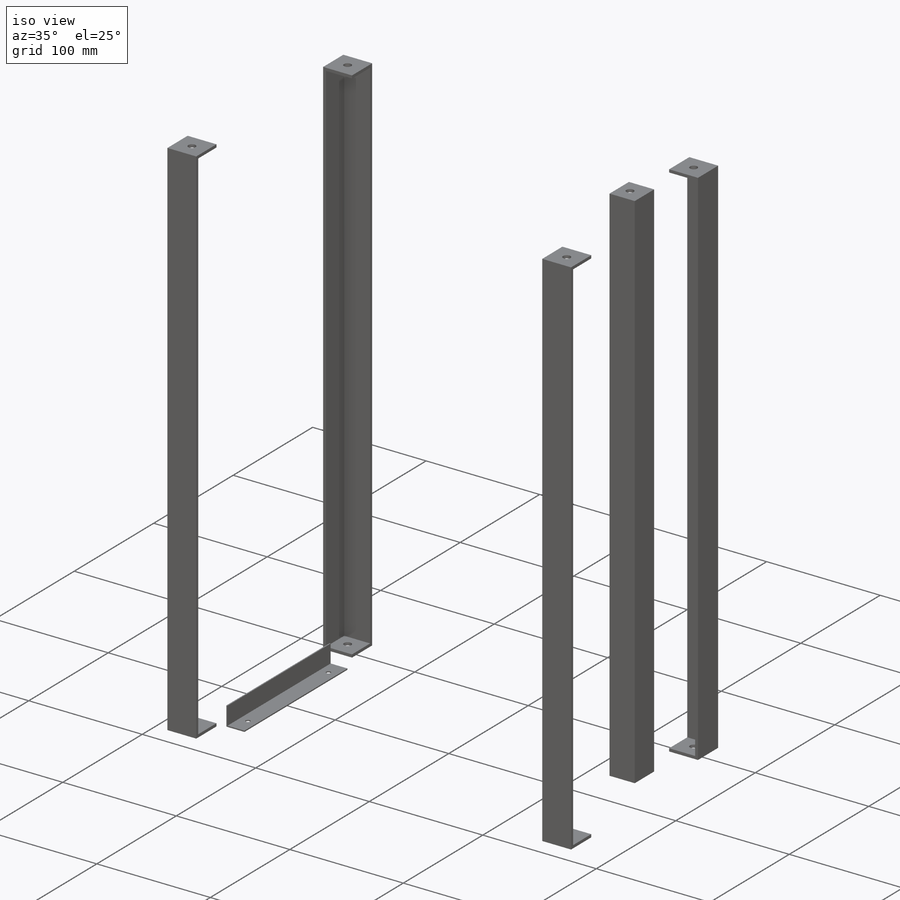
[diagram: iso view]
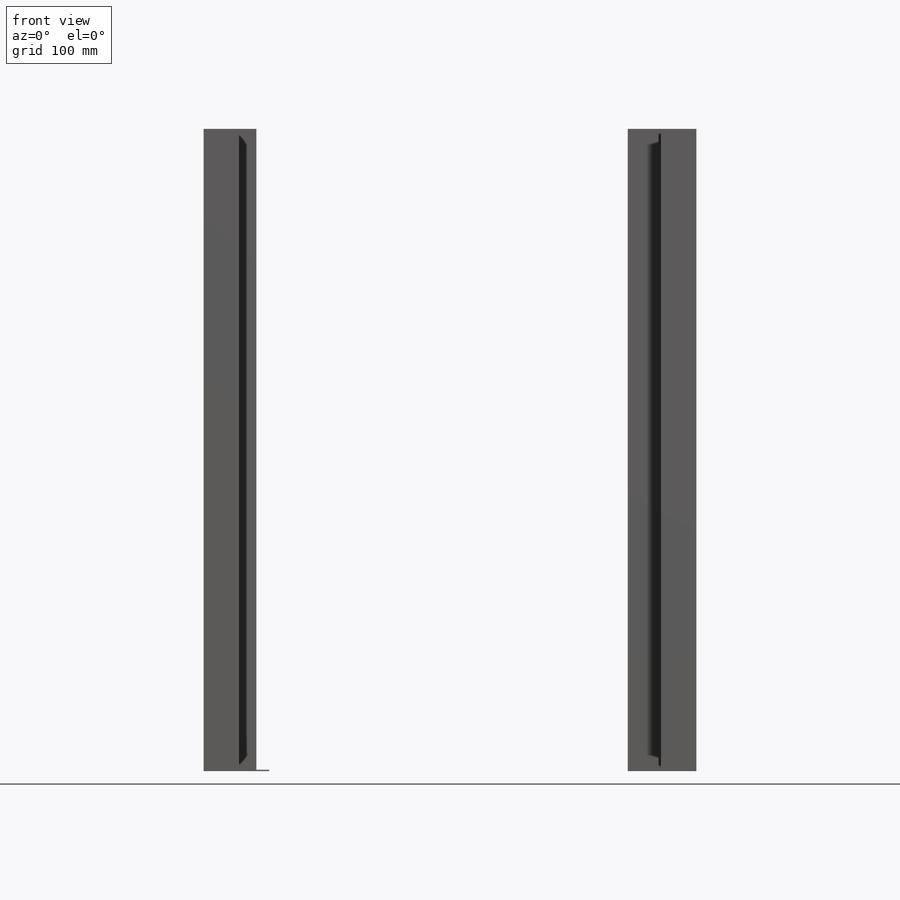
[diagram: front view]
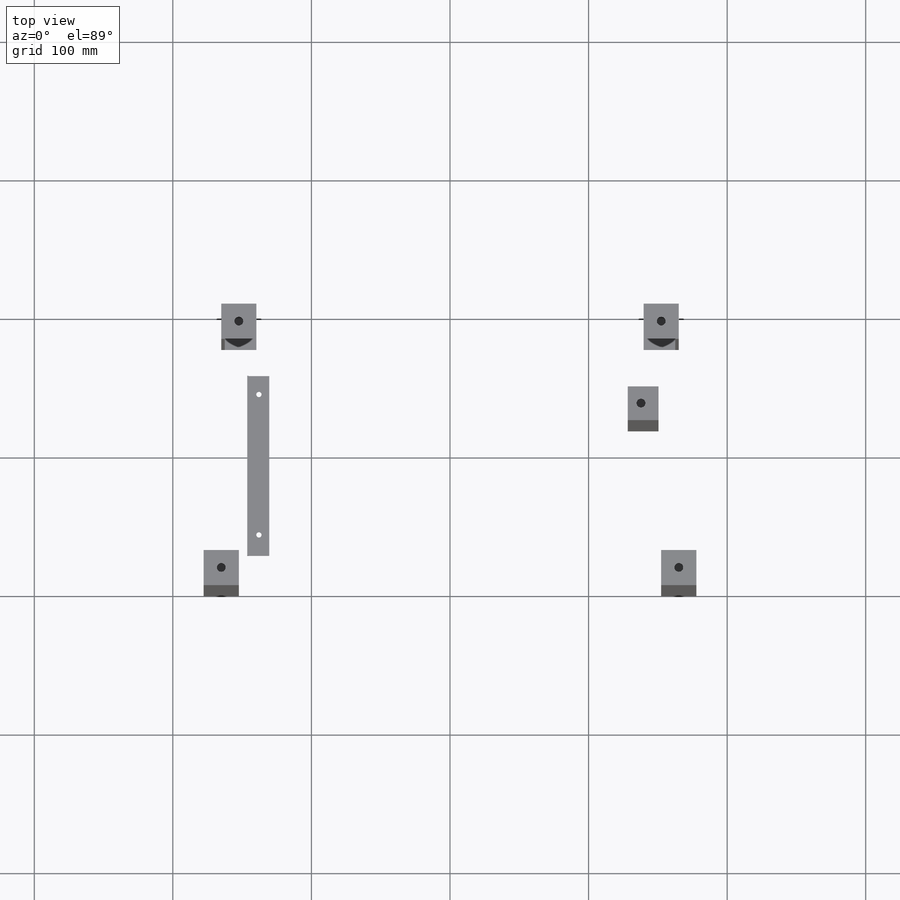
[diagram: top view]
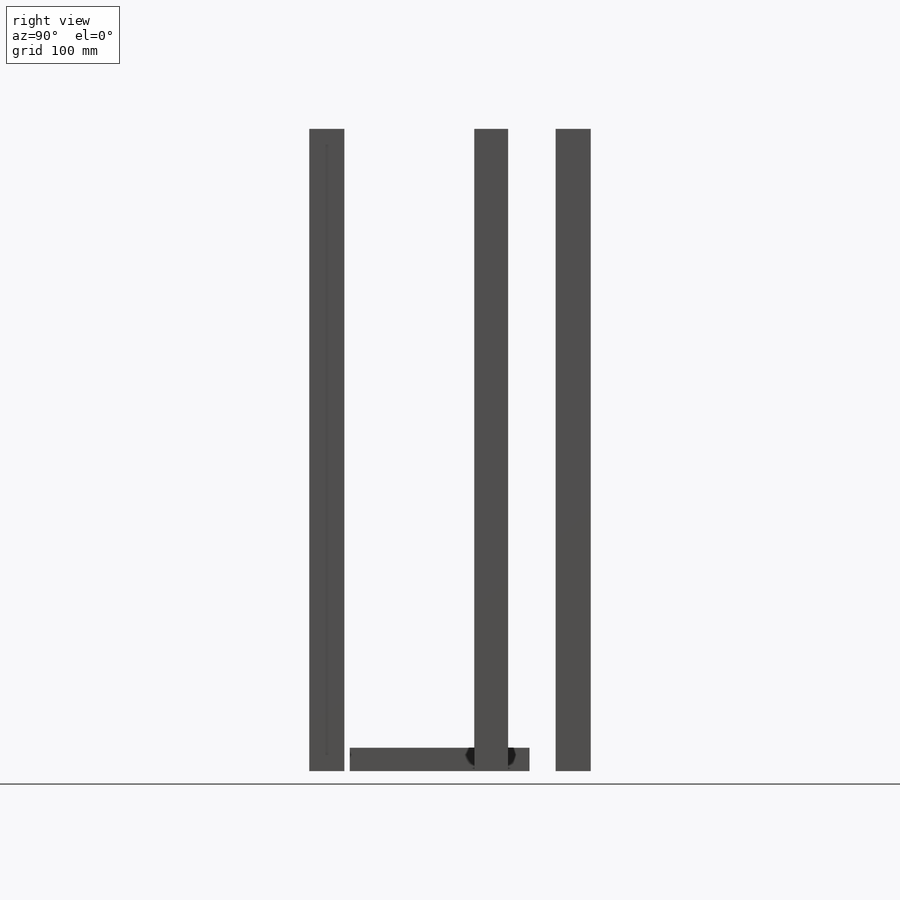
[diagram: right view]
SOLIDWORKS PART (.sldprt)
format: sldprt  version: not decoded by parser v0  size: 6,373,376 bytes
history: native  units: mm
features: sketch x292, extrude x75, cut_extrude x72, sheet_metal_op x50, mirror x46, fillet x34, plane x13, move_body x7, boolean_combine x4, delete_body x3, chamfer x2, material x1, surface_op x1 + 101 further entries (+12 scaffold rows collapsed; 41 parser-record rows omitted)
feature tree (754):
  scaffold x12  (default folders/planes/origin — collapsed)
  material  "Material <not specified>"
  sketch  "Sketch1"  dims[D1=203.2mm D2=406.4mm]
  extrude  "Boss-Extrude1"  Depth=2.54mm
  plane  "Plane1"  Offset=463.55mm
  fillet  "Fillet1"  Radius=25.4mm
  sketch  "Sketch2"  dims[D1=0.0mm]
  extrude  "Boss-Extrude2"  Depth=2.54mm
  sketch  "Sketch4"  dims[D1=12.7mm D2=12.7mm D3=76.2mm D4=1.651mm]
  sketch  "Sketch3"  dims[c1.D4=1.524mm c1.D2=76.2mm c1.D3=25.4mm c2.D2=152.4mm c2.D5=50.8mm c2.D6=76.2mm c2.D7=76.2mm c2.D8=25.4mm c2.D1=0.0mm]
  surface_op  "Surface-Extrude1"
  "Thicken2"
  sketch  "Sketch11"  dims[D1=254.0mm]
  sketch  "Sketch12"  dims[D1=0.0mm]
  sketch  "Sketch15"  dims[c1.D1=254.0mm c1.D2=1.524mm c2.D1=254.0mm c2.D2=0.762mm c2.D3=0.762mm]
  extrude  "Boss-Extrude10"  [1 undecoded]
  sketch  "Sketch16"  dims[D1=0.0mm]
  extrude  "Boss-Extrude11"  [1 undecoded]
  sketch  "Sketch18"  dims[D3=25.4mm D1=114.3mm D2=99.06mm D4=0.762mm]
  extrude  "Boss-Extrude13"  [1 undecoded]
  sketch  "Sketch21"  dims[c1.D1=12.7mm c1.D2=76.2mm c1.D3=6.35mm c1.D4=6.35mm c2.D2=120.65mm c2.D3=95.25mm]
  extrude  "Boss-Extrude15"  [1 undecoded]
  sketch  "Sketch22"  dims[D1=12.7mm D2=177.8mm D3=3.175mm]
  cut_extrude  "Cut-Extrude3"  Depth=12.7mm
  fillet  "Fillet6"  [1 undecoded]
  fillet  "Fillet7"  [1 undecoded]
  fillet  "Fillet8"  [1 undecoded]
  fillet  "Fillet9"  [1 undecoded]
  sketch  "Sketch24"  dims[D1=0.0mm]
  extrude  "Boss-Extrude17"  Depth=6.35mm
  plane  "Plane2"  Offset=25.4mm
  sketch  "Sketch25"  dims[D2=88.9mm D1=3.175mm]
  extrude  "Boss-Extrude18"  Depth=2.54mm
  sketch  "Sketch26"  dims[c1.D1=88.9mm c2.D1=1.524mm]
  sketch  "Sketch27"  dims[D1=254.0mm]
  extrude  "Boss-Extrude19"  [1 undecoded]
  plane  "Plane3"  Offset=50.8mm
  sketch  "Sketch28"  dims[D1=6.35mm D2=19.05mm]
  extrude  "Boss-Extrude20"  Depth=25.4mm
  sketch  "Sketch29"  dims[D1=3.175mm]
  extrude  "Boss-Extrude21"  Depth=152.4mm
  move_body  "Body-Move/Copy3"
  sketch  "Sketch30"  dims[D1=88.9mm D2=139.7mm D3=25.4mm]
  cut_extrude  "Cut-Extrude4"  Depth=17.78mm
  fillet  "Fillet13"  Radius=9.525mm
  sketch  "Sketch34"  dims[D1=~13.49375mm]
  sketch  "Sketch35"
  cut_extrude  "Cut-Extrude6"  Depth=25.146mm
  sketch  "Sketch36"  dims[D1=6.35mm]
  sketch  "Sketch38"  dims[c1.D2=38.1mm c1.D1=0.0mm c2.D1=0.7366mm c2.D2=0.5 c2.D3=0.0mm c2.D6=500.0mm]
  sheet_metal_op  "Base-Flange1"
  sheet_metal_op  "BaseBend2"
  plane  "Plane4"
  sketch  "Sketch44"
  sketch  "Sketch47"  dims[c1.D1=0.7366mm c1.D4=90.0deg c1.D5=3.0 c1.D8=0.4445mm c1.D9=0.4445mm c2.D1=0.7366mm c2.D2=500.0mm c2.D3=0.0mm c2.D6=10.0mm c2.D7=118.11mm]
  sketch  "Sketch48"  dims[D1=38.1mm Base-Flange2=0.0]
  sheet_metal_op  "BaseBend3"
  sheet_metal_op  "BaseBend4"
  sketch  "3DSketch1"
  plane  "Plane9"
  sketch  "Sketch51"  dims[D1=25.4mm D2=25.4mm D4=25.4mm D5=25.4mm D3=2.54mm D6=1.524mm]
  extrude  "Boss-Extrude23"  Depth=254mm
  mirror  "Mirror4"
  sketch  "Sketch52"  dims[D1=25.4mm D2=25.4mm D3=2.54mm]
  extrude  "Boss-Extrude24"  [1 undecoded]
  sketch  "Sketch53"  dims[c1.D1=25.4mm c1.D2=~15.619933mm c2.D2=90.0deg c3.D2=25.4mm c3.D3=2.54mm]
  extrude  "Boss-Extrude25"  [1 undecoded]
  sketch  "Sketch54"  dims[D1=25.4mm D2=25.4mm D3=2.54mm]
  extrude  "Boss-Extrude26"  [1 undecoded]
  sketch  "Sketch55"
  sketch  "Sketch56"
  cut_extrude  "Cut-Extrude9"  [1 undecoded]
  sketch  "Sketch61"
  sketch  "EdgeBend2"  dims[c1.D1=0.7366mm c1.D4=90.0deg c1.D5=3.0 c1.D8=0.4445mm c1.D9=0.4445mm c2.D1=0.7366mm c2.D2=500.0mm c2.D3=0.0mm c2.D6=10.0mm c2.D7=118.11mm]
  sketch  "Sketch62"
  cut_extrude  "Cut-Extrude10"  [1 undecoded]
  sketch  "Sketch63"
  sketch  "Sketch64"
  sketch  "Sketch65"  dims[D1=0.0mm Base-Flange3=0.0]
  sheet_metal_op  "BaseBend12"
  sheet_metal_op  "BaseBend13"
  sheet_metal_op  "BaseBend14"
  sketch  "Sketch68"
  cut_extrude  "Cut-Extrude12"  [1 undecoded]
  sketch  "Sketch69"  dims[Base-Flange4=1.3e-05]
  sheet_metal_op  "BaseBend8"
  sketch  "Sketch74"  dims[D1=25.4mm Base-Flange5=~0.265626]
  sheet_metal_op  "BaseBend9"
  sheet_metal_op  "BaseBend10"
  sketch  "Sketch77"  dims[D1=254.0mm D2=88.9mm]
  sketch  "Sketch82"
  cut_extrude  "Cut-Extrude15"  Depth=5.588mm
  move_body  "Body-Move/Copy4"
  sketch  "Sketch83"  dims[D1=0.0mm]
  extrude  "Boss-Extrude27"  Depth=5.588mm
  plane  "Plane5"
  mirror  "Mirror1"
  sketch  "DerivedBend1"  dims[D1=0.7366mm D2=500.0mm D3=0.0mm D4=~17.432148deg D5=1.0]
  sketch  "DerivedBend2"  dims[D1=253.111mm D2=500.0mm D3=0.0mm D4=~5.706513deg D5=2.0]
  sketch  "Sketch86"
  extrude  "Boss-Extrude28"  Depth=2.54mm
  sketch  "Sketch87"
  extrude  "Boss-Extrude29"  Depth=2.54mm
  sketch  "Sketch88"
  extrude  "Boss-Extrude30"  Depth=2.54mm
  sketch  "Sketch89"
  extrude  "Boss-Extrude31"  Depth=2.54mm
  sketch  "Sketch90"
  extrude  "Boss-Extrude32"  Depth=2.54mm
  sketch  "Sketch91"  dims[D1=6.35mm]
  cut_extrude  "Cut-Extrude16"  Depth=30.48mm
  sketch  "Sketch92"  dims[D1=6.35mm]
  sketch  "Sketch94"  dims[D3=25.4mm D1=203.2mm D2=44.45mm]
  cut_extrude  "Cut-Extrude19"  Depth=30.48mm
  sketch  "Sketch95"  dims[D1=0.0mm]
  extrude  "Boss-Extrude33"  Depth=2.54mm
  sketch  "Sketch96"  dims[D1=0.0mm D2=0.0mm]
  extrude  "Boss-Extrude34"  Depth=2.54mm
  sketch  "Sketch97"  dims[D1=0.0mm]
  extrude  "Boss-Extrude35"  Depth=2.54mm
  sketch  "Sketch98"  dims[D1=0.0mm]
  extrude  "Boss-Extrude36"  Depth=2.54mm
  sketch  "Sketch99"  dims[D1=0.0mm]
  extrude  "Boss-Extrude37"  Depth=2.54mm
  plane  "Plane6"
  sketch  "Sketch101"  dims[D1=25.4mm D2=25.4mm D4=25.4mm D5=25.4mm D3=2.54mm D6=1.524mm]
  extrude  "Boss-Extrude38"  Depth=139.7mm
  mirror  "Mirror2"
  sketch  "Sketch102"  dims[D1=6.35mm D2=25.4mm D3=25.4mm]
  delete_body  "Body-Delete1"
  sketch  "Sketch104"  dims[D1=6.35mm D2=12.7mm D3=12.7mm]
  cut_extrude  "Cut-Extrude22"  Depth=15.24mm
  move_body  "Body-Move/Copy5"
  move_body  "Body-Move/Copy6"
  sketch  "Sketch106"  dims[D1=6.35mm D2=19.05mm D3=19.05mm]
  sketch  "Sketch107"  dims[D1=6.35mm D3=6.35mm D5=6.35mm D2=12.7mm D4=12.7mm]
  sketch  "Sketch108"  dims[D1=88.9mm]
  sketch  "Sketch109"  dims[D1=6.35mm D2=12.7mm]
  sketch  "Sketch110"
  sketch  "Sketch111"  dims[D1=6.35mm D2=25.4mm D3=25.4mm]
  sketch  "Sketch112"  dims[c1.D3=6.35mm c1.D2=25.4mm c2.D3=15.875mm c2.D4=25.4mm c2.D1=1.7145mm c3.D4=~0.79375mm]
  extrude  "Boss-Extrude40"  Depth=2.54mm
  sketch  "Sketch123"
  extrude  "Boss-Extrude46"  Depth=3.175mm
  sketch  "Sketch124"  dims[D1=11.43mm D2=11.43mm D3=13.97mm D4=6.35mm]
  cut_extrude  "Cut-Extrude33"  Depth=8.255mm
  sketch  "Sketch126"
  sketch  "Sketch127"
  sketch  "Sketch128"  dims[D1=6.35mm D2=88.9mm D3=25.4mm]
  boolean_combine  "Combine1"
  sketch  "Sketch129"  dims[D1=1.524mm D2=1.524mm]
  cut_extrude  "Cut-Extrude35"  Depth=7.62mm
  fillet  "Fillet18"  Radius=2.54mm
  sketch  "Sketch131"  dims[c1.D1=2.54mm c1.D2=254.0mm c2.D1=2.54mm c2.D2=254.0mm]
  extrude  "Boss-Extrude47"  Depth=25.4mm
  sketch  "Sketch132"  dims[D1=1.524mm D2=1.524mm]
  cut_extrude  "Cut-Extrude36"  Depth=25.4mm
  fillet  "Fillet19"  Radius=2.54mm
  mirror  "Mirror5"
  boolean_combine  "Combine2"
  boolean_combine  "Combine3"
  sketch  "Sketch133"  dims[D1=1.524mm D2=1.524mm]
  cut_extrude  "Cut-Extrude37"  Depth=25.4mm
  fillet  "Fillet20"  Radius=2.54mm
  fillet  "Fillet21"  Radius=2.54mm
  sketch  "Sketch134"  dims[D1=127.0mm]
  extrude  "Boss-Extrude48"  [1 undecoded]
  sketch  "Sketch135"
  cut_extrude  "Cut-Extrude38"  Depth=25.4mm
  fillet  "Fillet22"  Radius=2.54mm
  sketch  "Sketch136"  dims[D1=6.35mm D2=419.1mm]
  cut_extrude  "Cut-Extrude39"  Depth=25.4mm
  plane  "Plane10"  Offset=387.35mm
  sketch  "Sketch137"  dims[c1.D1=25.4mm c1.D2=25.4mm c1.D3=1.016mm c2.D1=1.016mm]
  extrude  "Boss-Extrude49"  [1 undecoded]
  sketch  "Sketch139"  dims[c1.D1=38.1mm c1.D2=25.4mm c2.D1=25.4mm c2.D2=25.4mm c3.D1=25.4mm c3.D3=2.54mm c3.D2=2.54mm]
  extrude  "Boss-Extrude50"  [1 undecoded]
  sketch  "Sketch141"
  extrude  "Boss-Extrude52"  Depth=2.54mm
  sketch  "Sketch142"
  extrude  "Boss-Extrude53"  Depth=2.54mm
  sketch  "Sketch140"
  extrude  "Boss-Extrude51"  Depth=2.54mm
  sketch  "Sketch145"  dims[D1=0.0mm]
  cut_extrude  "Cut-Extrude40"  Depth=19.05mm
  sketch  "Sketch146"  dims[D1=39.116mm]
  cut_extrude  "Cut-Extrude41"  Depth=5.08mm
  plane  "Plane11"  Offset=127mm
  sketch  "Sketch149"  dims[D1=2.54mm]
  sketch  "Sketch150"  dims[D1=0.0mm]
  extrude  "Boss-Extrude56"  Depth=2.54mm
  sketch  "Sketch151"  dims[D1=0.0mm]
  extrude  "Boss-Extrude57"  Depth=2.54mm
  sketch  "Sketch153"  dims[D1=6.35mm]
  cut_extrude  "Cut-Extrude44"  Depth=25.4mm
  sketch  "Sketch154"
  cut_extrude  "Cut-Extrude45"  [1 undecoded]
  sketch  "Sketch157"  dims[D1=0.0mm D2=2.54mm]
  extrude  "Boss-Extrude60"  [1 undecoded]
  plane  "Plane13"  Offset=50.8mm
  sketch  "Sketch171"  dims[D1=19.05mm D2=2.54mm]
  extrude  "Boss-Extrude67"  Depth=203.2mm
  sketch  "Sketch158"  dims[D1=9.525mm]
  extrude  "Boss-Extrude61"  Depth=213.36mm
  sketch  "Sketch155"  dims[D1=2.54mm D2=25.4mm D3=25.4mm D4=2.54mm]
  extrude  "Boss-Extrude58"  Depth=25.4mm
  sketch  "Sketch156"  dims[D1=2.54mm]
  extrude  "Boss-Extrude59"  [1 undecoded]
  sketch  "Sketch159"  dims[c1.D1=6.35mm c2.D1=6.35mm]
  sketch  "Sketch160"  dims[D1=6.35mm]
  plane  "Plane12"  Offset=14.859mm
  sketch  "Sketch168"
  sketch  "Sketch162"  dims[c1.D1=~7.111999mm c1.D2=~2.065823mm c1.D3=~1.998178mm c1.D4=2.032mm c2.D1=2.032mm c2.D2=1.016mm c2.D3=2.032mm c2.D4=~1.246074mm c3.D3=91.44mm c3.D4=38.1mm]
  extrude  "Boss-Extrude62"  Depth=10.16mm
  sketch  "Sketch163"
  extrude  "Boss-Extrude63"  [1 undecoded]
  sketch  "Sketch164"  dims[D1=5.08mm]
  extrude  "Boss-Extrude64"  Depth=3.175mm
  sketch  "Sketch165"  dims[D1=3.175mm D2=165.1mm]
  extrude  "Boss-Extrude65"  Depth=3.175mm
  sketch  "Sketch167"  dims[D1=19.05mm D2=101.6mm]
  extrude  "Boss-Extrude66"  Depth=3.175mm
  mirror  "Mirror6"
  sketch  "Sketch169"  dims[D3=215.9mm D1=2.54mm D2=2.54mm D4=2.54mm D5=2.54mm]
  cut_extrude  "Cut-Extrude49"  Depth=3.175mm
  fillet  "Fillet23"  [1 undecoded]
  fillet  "Fillet24"  [1 undecoded]
  sketch  "Sketch170"  dims[D1=0.0mm D2=19.05mm]
  cut_extrude  "Cut-Extrude50"  Depth=10mm
  sketch  "Sketch172"  dims[D1=3.175mm]
  sketch  "Sketch173"
  sketch  "Sketch174"
  sketch  "Sketch175"
  sketch  "Sketch181"  dims[D1=3.175mm]
  sketch  "Sketch182"  dims[c1.D1=0.0mm c2.D1=1.016mm]
  sketch  "Sketch184"
  extrude  "Boss-Extrude73"  Depth=1.016mm
  sketch  "Sketch185"  dims[D1=12.7mm]
  extrude  "Boss-Extrude74"  [1 undecoded]
  sketch  "Sketch186"  dims[D1=57.15mm]
  extrude  "Boss-Extrude75"  Depth=2.54mm
  sketch  "Sketch187"  dims[D1=19.05mm]
  extrude  "Boss-Extrude76"  Depth=2.54mm
  sketch  "Sketch188"  dims[D2=6.35mm D1=12.7mm]
  cut_extrude  "Cut-Extrude57"  Depth=15.24mm
  sketch  "Sketch189"  dims[D1=0.762mm D2=0.762mm D3=0.762mm D4=0.762mm]
  cut_extrude  "Cut-Extrude58"  Depth=15.24mm
  chamfer  "Chamfer1"  Distance=2.54mm Angle=45deg
  move_body  "Body-Move/Copy7"
  move_body  "Body-Move/Copy9"
  sketch  "Sketch190"
  extrude  "Boss-Extrude77"  [1 undecoded]
  sketch  "Sketch192"  dims[D1=0.0mm]
  extrude  "Boss-Extrude78"  Depth=2.54mm
  sketch  "Sketch194"  dims[D3=6.35mm D1=76.2mm D2=76.2mm]
  fillet  "Fillet26"  Radius=1.524mm
  fillet  "Fillet27"  Radius=1.524mm
  sketch  "Sketch196"  dims[D1=14.2875mm D2=14.2875mm D3=13.97mm D4=11.43mm]
  sketch  "Sketch197"
  cut_extrude  "Cut-Extrude61"  [1 undecoded]
  sketch  "Sketch198"  dims[D1=0.0mm]
  extrude  "Boss-Extrude80"  [1 undecoded]
  sketch  "Sketch199"  dims[D1=0.0mm]
  sketch  "Sketch200"  dims[D1=38.1mm D2=25.4mm D3=2.54mm]
  extrude  "Boss-Extrude81"  Depth=273.05mm
  sketch  "Sketch202"  dims[D1=6.35mm D2=12.7mm D3=12.7mm]
  cut_extrude  "Cut-Extrude63"  Depth=25.4mm
  sketch  "Sketch203"  dims[D1=6.35mm D2=12.7mm D3=12.7mm]
  sketch  "Sketch204"  dims[D1=4.7752mm D2=12.7mm D3=12.7mm]
  cut_extrude  "Cut-Extrude65"  Depth=25.4mm
  sketch  "Sketch205"
  cut_extrude  "Cut-Extrude66"  Depth=25.4mm
  sketch  "Sketch206"  dims[D1=101.6mm]
  cut_extrude  "Cut-Extrude67"  [1 undecoded]
  sketch  "Sketch209"  dims[D4=3.175mm D6=3.175mm D8=3.175mm D9=3.175mm D1=33.02mm D2=17.78mm D3=119.38mm D5=25.4mm D7=25.4mm D10=25.4mm D11=25.4mm]
  cut_extrude  "Cut-Extrude68"  Depth=6.096mm
  fillet  "Fillet30"  Radius=1.524mm
  sketch  "Sketch210"  dims[D1=25.4mm]
  extrude  "Boss-Extrude84"  Depth=1.016mm
  sketch  "Sketch211"  dims[D1=25.4mm D2=22.225mm]
  extrude  "Boss-Extrude85"  Depth=1.016mm
  sketch  "Sketch212"  dims[D1=6.35mm]
  sketch  "Sketch213"  dims[D1=~2.38125mm D2=~2.38125mm D3=~2.38125mm]
  cut_extrude  "Cut-Extrude70"  [1 undecoded]
  sketch  "Sketch214"  dims[D2=3.175mm D3=3.175mm D1=30.48mm]
  cut_extrude  "Cut-Extrude71"  Depth=11.176mm
  sketch  "Sketch215"  dims[D1=6.35mm]
  cut_extrude  "Cut-Extrude72"  Depth=18.796mm
  sketch  "Sketch216"  dims[D1=76.2mm D2=12.7mm]
  sketch  "Sketch217"  dims[c1.D1=76.2mm c1.D2=12.7mm c2.D1=1.524mm c3.D1=2.032mm c4.D1=1.524mm]
  sketch  "Sketch218"  dims[D1=1.524mm]
  cut_extrude  "Cut-Extrude73"  Depth=3.556mm
  sketch  "Sketch219"  dims[D3=6.35mm D1=203.2mm D2=127.0mm]
  cut_extrude  "Cut-Extrude74"  Depth=8.636mm
  cut_extrude  "Cut-Extrude75"  Depth=120.396mm
  sketch  "Sketch220"  dims[D1=3.175mm D2=63.5mm]
  cut_extrude  "Cut-Extrude76"  Depth=120.396mm
  sketch  "Sketch221"  dims[D1=6.35mm D4=6.35mm D2=9.525mm D3=9.525mm D5=9.525mm]
  cut_extrude  "Cut-Extrude77"  Depth=25.4mm
  sketch  "Sketch223"  dims[D1=11.43mm D2=13.97mm D3=11.43mm D4=11.43mm D5=11.43mm]
  cut_extrude  "Cut-Extrude78"  Depth=25.4mm
  sketch  "Sketch224"  dims[D4=3.175mm D1=~19.84375mm D2=~27.78125mm D3=39.6875mm]
  cut_extrude  "Cut-Extrude79"  Depth=25.4mm
  sketch  "Sketch225"  dims[D1=6.35mm D2=127.0mm D3=203.2mm]
  sketch  "Sketch226"
  cut_extrude  "Cut-Extrude81"  Depth=25.4mm
  fillet  "Fillet36"  Radius=1.27mm
  sketch  "Sketch227"  dims[D1=12.7mm D2=12.7mm D3=2.54mm]
  extrude  "Boss-Extrude88"  Depth=3.175mm
  sketch  "Sketch228"  dims[D1=2.54mm D2=25.4mm]
  cut_extrude  "Cut-Extrude82"  Depth=5.715mm
  sketch  "Sketch229"
  cut_extrude  "Cut-Extrude83"  Depth=5.715mm
  sketch  "Sketch230"  dims[D1=25.4mm]
  extrude  "Boss-Extrude89"  Depth=2.54mm
  sketch  "Sketch231"  dims[D1=6.35mm D2=12.7mm D3=12.7mm]
  cut_extrude  "Cut-Extrude84"  Depth=7.62mm
  sketch  "Sketch232"  dims[D4=3.175mm D6=3.175mm D8=3.175mm D10=3.175mm D1=33.02mm D2=119.38mm D3=17.78mm D5=19.05mm D7=19.05mm D9=19.05mm D11=19.05mm]
  cut_extrude  "Cut-Extrude85"  Depth=7.62mm
  sketch  "Sketch234"  dims[D1=15.875mm]
  extrude  "Boss-Extrude90"  Depth=1.016mm
  sketch  "Sketch235"  dims[D1=1.016mm]
  extrude  "Boss-Extrude91"  Depth=15.875mm
  plane  "Plane14"  Offset=83.82mm
  sketch  "Sketch236"  dims[D1=3.81mm]
  cut_extrude  "Cut-Extrude86"  Depth=15.875mm
  mirror  "Mirror7"
  sketch  "Sketch237"
  cut_extrude  "Cut-Extrude87"  [1 undecoded]
  sketch  "Sketch238"
  cut_extrude  "Cut-Extrude88"  Depth=2.54mm
  sketch  "Sketch239"
  cut_extrude  "Cut-Extrude89"  Depth=2.54mm
  fillet  "Fillet37"  Radius=2.54mm
  sketch  "Sketch240"  dims[D1=0.0mm]
  cut_extrude  "Cut-Extrude90"  [1 undecoded]
  sketch  "Sketch241"
  extrude  "Boss-Extrude92"  Depth=1.524mm
  fillet  "Fillet38"  Radius=2.54mm
  fillet  "Fillet39"  Radius=3.556mm
  fillet  "Fillet40"  Radius=3.556mm
  sketch  "Sketch244"
  sketch  "Sketch251"  dims[D1=1.016mm D2=12.7mm D3=1.016mm D4=12.7mm]
  extrude  "Boss-Extrude93"  [1 undecoded]
  sketch  "Sketch252"  dims[D1=0.0mm]
  cut_extrude  "Cut-Extrude91"  [1 undecoded]
  sketch  "Sketch253"  dims[D1=0.0mm]
  extrude  "Boss-Extrude94"  [1 undecoded]
  sketch  "Sketch254"
  cut_extrude  "Cut-Extrude92"  [1 undecoded]
  sketch  "Sketch255"  dims[D1=1.016mm D2=1.016mm]
  extrude  "Boss-Extrude95"  [1 undecoded]
  sketch  "Sketch258"
  cut_extrude  "Cut-Extrude93"  Depth=5.08mm
  sketch  "Sketch259"  dims[D1=11.43mm]
  cut_extrude  "Cut-Extrude94"  Depth=5.08mm
  sketch  "Sketch261"  dims[D1=3.81mm D2=63.5mm D3=63.5mm]
  sketch  "Sketch262"
  move_body  "Body-Move/Copy10"
  parser-record x41  (decoder bookkeeping rows leaked as tree rows — omitted from the tree; the rows remain in map.json)
  sketch  "Sketch271"
  cut_extrude  "Cut-Extrude99"  Depth=7.62mm
  sketch  "Sketch279"  dims[D1=1.27mm]
  cut_extrude  "Cut-Extrude102"  Depth=16.764mm
  sketch  "Sketch281"  dims[D1=228.6mm]
  extrude  "Boss-Extrude105"  Depth=2.54mm
  sketch  "Sketch282"  dims[D1=2.54mm D2=2.54mm]
  extrude  "Boss-Extrude106"  [1 undecoded]
  cut_extrude  "Cut-Extrude103"  [1 undecoded]
  sketch  "Sketch232<2>"  dims[D1=12.7mm]
  sketch  "Sketch285"  dims[D1=6.35mm D2=25.4mm D3=76.2mm]
  sketch  "Sketch286"  dims[D1=~0.79375mm D2=~0.79375mm]
  extrude  "Boss-Extrude107"  [1 undecoded]
  sketch  "Sketch287"
  cut_extrude  "Cut-Extrude105"  Depth=25.4mm
  sketch  "Sketch288"  dims[D1=25.4mm D2=4.572mm]
  cut_extrude  "Cut-Extrude106"  Depth=25.4mm
  fillet  "Fillet44"  Radius=6.35mm
  fillet  "Fillet46"  Radius=3.175mm
  sketch  "Sketch297"  dims[D1=0.1mm D2=0.1mm]
  extrude  "Boss-Extrude113"  [1 undecoded]
  sketch  "Sketch298"  dims[D3=3.81mm D1=12.7mm D2=50.8mm]
  extrude  "Boss-Extrude114"  Depth=2.54mm
  fillet  "Fillet47"  Radius=3.175mm
  fillet  "Fillet48"  Radius=3.175mm
  sketch  "Sketch299"
  cut_extrude  "Cut-Extrude109"  Depth=15.24mm
  sketch  "Sketch300"  dims[D1=38.1mm D2=50.8mm]
  cut_extrude  "Cut-Extrude110"  Depth=15.24mm
  sketch  "Sketch301"
  cut_extrude  "Cut-Extrude111"  Depth=7.62mm
  sketch  "Sketch302"
  cut_extrude  "Cut-Extrude112"  Depth=27.94mm
  plane  "Plane17"
  sketch  "Sketch306"  dims[D1=0.762mm D2=50.8mm D3=12.7mm]
  extrude  "Boss-Extrude115"  Depth=12.7mm
  sketch  "Sketch307"  dims[D3=3.81mm D1=12.7mm D2=12.7mm]
  cut_extrude  "Cut-Extrude113"  Depth=12.7mm
  mirror  "Mirror11"
  sketch  "Sketch308"  dims[D1=4.7752mm]
  cut_extrude  "Cut-Extrude114"  Depth=12.7mm
  fillet  "Fillet51"  Radius=6.35mm
  sketch  "Sketch309"
  chamfer  "Split2"  [1 undecoded]
  sketch  "Sketch310"  dims[D1=2.54mm D2=19.05mm]
  extrude  "Boss-Extrude116"  Depth=9.525mm
  sketch  "Sketch311"  dims[D1=0.0mm D2=0.0mm D3=0.0mm]
  cut_extrude  "Cut-Extrude115"  Depth=12.7mm
  sketch  "Sketch312"  dims[D1=6.25mm D2=78.0mm D3=26.0mm]
  cut_extrude  "Cut-Extrude116"  Depth=7.62mm
  sketch  "Sketch313"  dims[D1=11.57mm]
  fillet  "Fillet52"  Radius=6.35mm
  fillet  "Fillet53"  Radius=6.35mm
  sketch  "Sketch315"  dims[D1=0.0mm D2=0.0mm]
  cut_extrude  "Cut-Extrude119"  [1 undecoded]
  fillet  "Fillet54"  Radius=6.35mm
  fillet  "Fillet55"  Radius=6.35mm
  sketch  "Sketch319"
  sketch  "EdgeBend3"  dims[c1.D1=0.7366mm c1.D4=90.0deg c1.D5=4.0 c1.D8=0.4445mm c1.D9=0.4445mm c2.D1=0.7366mm c2.D2=500.0mm c2.D3=0.0mm c2.D6=10.0mm c2.D7=12.7mm]
  sketch  "Sketch322"
  sketch  "EdgeBend4"  dims[c1.D1=0.7366mm c1.D4=90.0deg c1.D5=4.0 c1.D8=0.4445mm c1.D9=0.4445mm c2.D1=0.7366mm c2.D2=500.0mm c2.D3=0.0mm c2.D6=10.0mm c2.D7=12.7mm]
  fillet  "Fillet56"  Radius=6.35mm
  fillet  "Fillet57"  Radius=6.35mm
  sketch  "Sketch323"  dims[D1=3.81mm D2=25.4mm D3=25.4mm]
  cut_extrude  "Cut-Extrude120"  Depth=7.58mm
  delete_body  "Body-Delete2"
  delete_body  "Body-Delete3"
  sketch  "Sketch324"  dims[D1=3.81mm]
  cut_extrude  "Cut-Extrude121"  Depth=5.08mm
  sketch  "Sketch325"  dims[c1.D1=3.5052mm c2.D1=19.05mm]
  sketch  "Sketch326"  dims[D1=6.35mm D2=44.45mm D3=31.75mm D4=114.3mm]
  cut_extrude  "Cut-Extrude122"  Depth=5.08mm
  fillet  "Fillet58"  Radius=9.525mm
  sketch  "Sketch327"  dims[c1.D3=12.7mm c1.D1=0.0mm c1.D2=0.0mm c2.D1=0.762mm]
  boolean_combine  "Combine4"
  sketch  "Sketch329"  dims[D1=2.54mm]
  extrude  "Boss-Extrude117"  [1 undecoded]
  sketch  "Sketch330"  dims[D1=2.54mm]
  extrude  "Boss-Extrude118"  Depth=2.54mm
  sketch  "Sketch328"  dims[c1.D3=4.7752mm c1.D4=~4.16978mm c1.D1=25.4mm c1.D2=25.4mm c2.D4=7.9375mm]
  cut_extrude  "Cut-Extrude123"  Depth=2.54mm
  fillet  "Fillet59"  Radius=6.35mm
  "Save Bodies2"
  "Save Bodies3"
  sketch  "Bend-Lines1"
  sketch  "Bounding-Box1"
  sheet_metal_op  "Sheet-Metal(86)"
  "Flat-Pattern(86)"
  sketch  "Bend-Lines2"
  sketch  "Bounding-Box2"
  "Flatten-<BaseBend2>1"
  mirror  "Sheet-Metal(87)"
  sheet_metal_op  "Flat-Pattern(86)"
  sketch  "Bend-Lines2"
  sketch  "Bounding-Box2"
  "Flatten-<BaseBend1>1"
  "Flatten-<BaseBend2>1"
  "Flatten-<EdgeBend1>1"
  mirror  "Sheet-Metal(88)"
  sheet_metal_op  "Flat-Pattern(88)"
  sketch  "Bend-Lines3"
  sketch  "Bounding-Box3"
  "Flatten-<BaseBend3>1"
  "Flatten-<BaseBend4>1"
  mirror  "Sheet-Metal(97)"
  sheet_metal_op  "Flat-Pattern(86)"
  sketch  "Bend-Lines2"
  sketch  "Bounding-Box2"
  "Flatten-<BaseBend1>1"
  "Flatten-<BaseBend2>1"
  "Flatten-<EdgeBend1>1"
  mirror  "Sheet-Metal(98)"
  sheet_metal_op  "Flat-Pattern(88)"
  sketch  "Bend-Lines3"
  sketch  "Bounding-Box3"
  "Flatten-<BaseBend3>1"
  "Flatten-<BaseBend4>1"
  "Flatten-<EdgeBend2>1"
  mirror  "Sheet-Metal(99)"
  sheet_metal_op  "Flat-Pattern(88)"
  sketch  "Bend-Lines3"
  sketch  "Bounding-Box3"
  "Flatten-<BaseBend3>1"
  "Flatten-<BaseBend4>1"
  "Flatten-<EdgeBend2>1"
  mirror  "Sheet-Metal(101)"
  sheet_metal_op  "Flat-Pattern(101)"
  sketch  "Bend-Lines4"
  sketch  "Bounding-Box4"
  "Flatten-<BaseBend12>1"
  "Flatten-<BaseBend13>1"
  "Flatten-<BaseBend14>1"
  mirror  "Sheet-Metal(102)"
  sheet_metal_op  "Flat-Pattern(101)"
  sketch  "Bend-Lines4"
  sketch  "Bounding-Box4"
  "Flatten-<BaseBend12>2"
  "Flatten-<BaseBend13>2"
  "Flatten-<BaseBend14>2"
  mirror  "Sheet-Metal(103)"
  sheet_metal_op  "Flat-Pattern(103)"
  sketch  "Bend-Lines5"
  sketch  "Bounding-Box5"
  "Flatten-<BaseBend8>1"
  mirror  "Sheet-Metal(104)"
  sheet_metal_op  "Flat-Pattern(104)"
  sketch  "Bend-Lines6"
  sketch  "Bounding-Box6"
  "Flatten-<BaseBend9>1"
  "Flatten-<BaseBend10>1"
  mirror  "Sheet-Metal(114)"
  sheet_metal_op  "Flat-Pattern(114)"
  sketch  "Bend-Lines8"
  sketch  "Bounding-Box8"
  "Flatten-<DerivedBend1>1"
  "Flatten-<DerivedBend2>1"
  mirror  "Sheet-Metal(236)"
  sheet_metal_op  "Flat-Pattern(86)"
  sketch  "Bend-Lines2"
  sketch  "Bounding-Box2"
  "Flatten-<BaseBend1>1"
  "Flatten-<BaseBend2>1"
  "Flatten-<EdgeBend1>1"
  mirror  "Sheet-Metal(237)"
  sheet_metal_op  "Flat-Pattern(88)"
  sketch  "Bend-Lines3"
  sketch  "Bounding-Box3"
  "Flatten-<BaseBend3>1"
  "Flatten-<BaseBend4>1"
  "Flatten-<EdgeBend2>1"
  mirror  "Sheet-Metal(250)"
  sheet_metal_op  "Flat-Pattern(88)"
  sketch  "Bend-Lines3"
  sketch  "Bounding-Box3"
  "Flatten-<BaseBend3>1"
  "Flatten-<BaseBend4>1"
  "Flatten-<EdgeBend2>1"
  mirror  "Sheet-Metal(251)"
  sheet_metal_op  "Flat-Pattern(86)"
  sketch  "Bend-Lines2"
  sketch  "Bounding-Box2"
  "Flatten-<BaseBend1>1"
  "Flatten-<BaseBend2>1"
  "Flatten-<EdgeBend1>1"
  mirror  "Sheet-Metal(340)"
  sheet_metal_op  "Flat-Pattern(88)"
  sketch  "Bend-Lines3"
  sketch  "Bounding-Box3"
  "Flatten-<BaseBend3>1"
  "Flatten-<BaseBend4>1"
  "Flatten-<EdgeBend2>1"
  mirror  "Sheet-Metal(341)"
  sheet_metal_op  "Flat-Pattern(86)"
  sketch  "Bend-Lines2"
  sketch  "Bounding-Box2"
  "Flatten-<BaseBend1>1"
  "Flatten-<BaseBend2>1"
  "Flatten-<EdgeBend1>1"
  mirror  "Sheet-Metal(368)"
  sheet_metal_op  "Flat-Pattern(86)"
  sketch  "Bend-Lines2"
  sketch  "Bounding-Box2"
  "Flatten-<BaseBend1>1"
  "Flatten-<BaseBend2>1"
  "Flatten-<EdgeBend1>1"
  mirror  "Sheet-Metal(379)"
  sheet_metal_op  "Flat-Pattern(86)"
  sketch  "Bend-Lines2"
  sketch  "Bounding-Box2"
  "Flatten-<BaseBend1>1"
  "Flatten-<BaseBend2>1"
  "Flatten-<EdgeBend1>1"
  mirror  "Sheet-Metal(380)"
  sheet_metal_op  "Flat-Pattern(88)"
  sketch  "Bend-Lines3"
  sketch  "Bounding-Box3"
  "Flatten-<BaseBend3>1"
  "Flatten-<BaseBend4>1"
  "Flatten-<EdgeBend2>1"
  mirror  "Sheet-Metal(385)"
  sheet_metal_op  "Flat-Pattern(88)"
  sketch  "Bend-Lines3"
  sketch  "Bounding-Box3"
  "Flatten-<BaseBend3>1"
  "Flatten-<BaseBend4>1"
  "Flatten-<EdgeBend2>1"
  mirror  "Sheet-Metal(386)"
  sheet_metal_op  "Flat-Pattern(386)"
  sketch  "Bend-Lines9"
  sketch  "Bounding-Box9"
  "Flatten-<BaseBend3>2"
  "Flatten-<BaseBend4>2"
  "Flatten-<EdgeBend2>2"
  "Flatten-<EdgeBend1>2"
  "Flatten-<BaseBend2>2"
  "Flatten-<BaseBend1>2"
  mirror  "Sheet-Metal(387)"
  sheet_metal_op  "Flat-Pattern(387)"
  sketch  "Bend-Lines10"
  sketch  "Bounding-Box10"
  mirror  "Sheet-Metal(388)"
  sheet_metal_op  "Flat-Pattern(388)"
  sketch  "Bend-Lines11"
  sketch  "Bounding-Box11"
  "Flatten-<BaseBend3>3"
  "Flatten-<BaseBend4>3"
  "Flatten-<EdgeBend2>3"
  mirror  "Sheet-Metal(389)"
  sheet_metal_op  "Flat-Pattern(389)"
  sketch  "Bend-Lines12"
  sketch  "Bounding-Box12"
  "Flatten-<EdgeBend1>3"
  "Flatten-<BaseBend2>3"
  "Flatten-<BaseBend1>3"
  mirror  "Sheet-Metal(390)"
  sheet_metal_op  "Flat-Pattern(387)"
  sketch  "Bend-Lines10"
  sketch  "Bounding-Box10"
  mirror  "Sheet-Metal(391)"
  sheet_metal_op  "Flat-Pattern(387)"
  sketch  "Bend-Lines10"
  sketch  "Bounding-Box10"
  mirror  "Sheet-Metal(392)"
  sheet_metal_op  "Flat-Pattern(388)"
  sketch  "Bend-Lines11"
  sketch  "Bounding-Box11"
  "Flatten-<BaseBend3>3"
  "Flatten-<BaseBend4>3"
  "Flatten-<EdgeBend2>3"
  mirror  "Sheet-Metal(393)"
  sheet_metal_op  "Flat-Pattern(388)"
  sketch  "Bend-Lines11"
  sketch  "Bounding-Box11"
  "Flatten-<BaseBend3>3"
  "Flatten-<BaseBend4>3"
  "Flatten-<EdgeBend2>3"
  mirror  "Sheet-Metal(394)"
  sheet_metal_op  "Flat-Pattern(394)"
  sketch  "Bend-Lines13"
  sketch  "Bounding-Box13"
  "Flatten-<BaseBend3>4"
  "Flatten-<BaseBend4>4"
  "Flatten-<EdgeBend2>4"
  mirror  "Sheet-Metal(443)"
  sheet_metal_op  "Flat-Pattern(387)"
  sketch  "Bend-Lines10"
  sketch  "Bounding-Box10"
  mirror  "Sheet-Metal(444)"
  sheet_metal_op  "Flat-Pattern(387)"
  sketch  "Bend-Lines10"
  sketch  "Bounding-Box10"
  mirror  "Sheet-Metal(445)"
  sheet_metal_op  "Flat-Pattern(387)"
  sketch  "Bend-Lines10"
  sketch  "Bounding-Box10"
  mirror  "Sheet-Metal(456)"
  sheet_metal_op  "Flat-Pattern(387)"
  sketch  "Bend-Lines10"
  sketch  "Bounding-Box10"
  mirror  "Sheet-Metal(457)"
  sheet_metal_op  "Flat-Pattern(394)"
  sketch  "Bend-Lines13"
  sketch  "Bounding-Box13"
  "Flatten-<BaseBend3>4"
  "Flatten-<BaseBend4>4"
  "Flatten-<EdgeBend2>4"
  "Flatten-<EdgeBend3>1"
  mirror  "Sheet-Metal(458)"
  sheet_metal_op  "Flat-Pattern(389)"
  sketch  "Bend-Lines12"
  sketch  "Bounding-Box12"
  "Flatten-<EdgeBend1>3"
  "Flatten-<BaseBend2>3"
  "Flatten-<BaseBend1>3"
  "Flatten-<EdgeBend4>1"
  mirror  "Sheet-Metal(459)"
  sheet_metal_op  "Flat-Pattern(389)"
  sketch  "Bend-Lines12"
  sketch  "Bounding-Box12"
  "Flatten-<EdgeBend1>3"
  "Flatten-<BaseBend2>3"
  "Flatten-<BaseBend1>3"
  "Flatten-<EdgeBend4>1"
  mirror  "Sheet-Metal(460)"
  sheet_metal_op  "Flat-Pattern(394)"
  sketch  "Bend-Lines13"
  sketch  "Bounding-Box13"
  "Flatten-<BaseBend3>4"
  "Flatten-<BaseBend4>4"
  "Flatten-<EdgeBend2>4"
  "Flatten-<EdgeBend3>1"
  mirror  "Sheet-Metal(461)"
  sheet_metal_op  "Flat-Pattern(387)"
  sketch  "Bend-Lines10"
  sketch  "Bounding-Box10"
  mirror  "Sheet-Metal(464)"
  sheet_metal_op  "Flat-Pattern(464)"
  sketch  "Bend-Lines14"
  sketch  "Bounding-Box14"
  "Flatten-<EdgeBend1>4"
  "Flatten-<BaseBend2>4"
  "Flatten-<BaseBend1>4"
  "Flatten-<EdgeBend4>2"
decode coverage: 297 of 586 modeling features carry decoded parameters; 101 rows unclassified (native names shown)
note: ~ marks probable driven/reference dimensions
note: 44 parameter values undecoded
summary: no parameter record found for 44 features
note: suppression state not decoded; provenance and decode notes live in map.json
